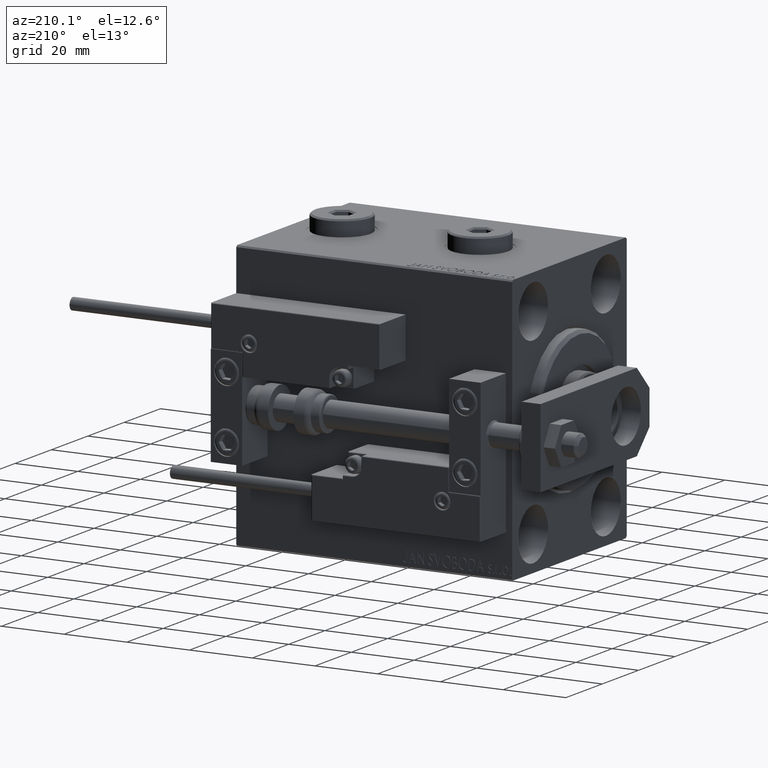
[diagram: clean part render]
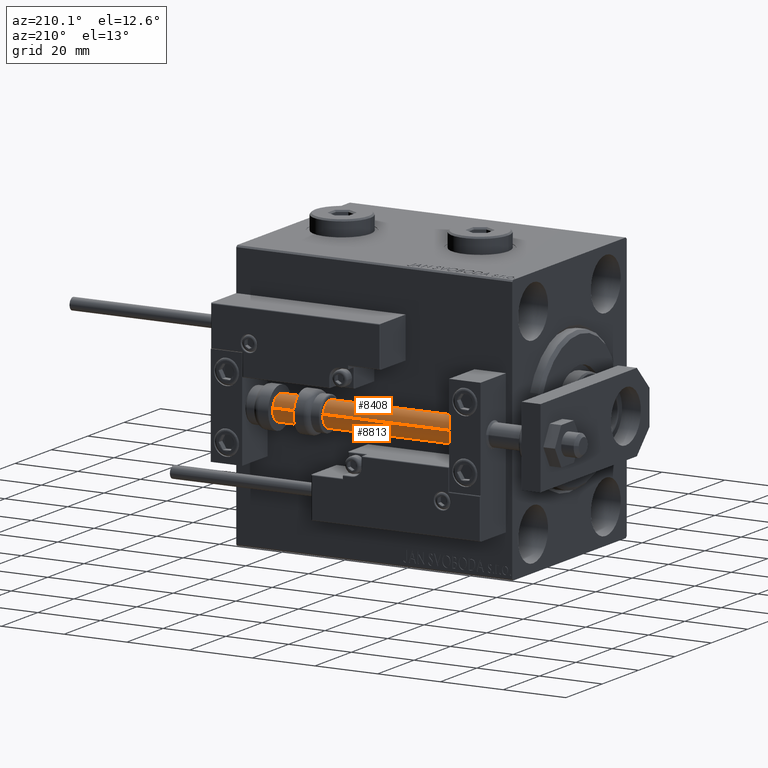
[diagram: same view with one multi-face feature highlighted, each face labeled with its STEP entity id]
A machine part, auxiliary view. The highlighted faces form ONE feature: a constant-radius fillet chain: 2 tangent blend faces with common blend radius 4 mm. The faces share edges in the B-rep.
Their STEP definitions:
[1] entity #8813 (Cylinder):
#2948 = CARTESIAN_POINT ( 'NONE',  ( 0.000000000000000000, 0.000000000000000000, 2.000000000000029310 ) ) ;
#4026 = ORIENTED_EDGE ( 'NONE', *, *, #47779, .F. ) ;
#6066 = AXIS2_PLACEMENT_3D ( 'NONE', #30469, #21349, #46408 ) ;
#7081 = VERTEX_POINT ( 'NONE', #12554 ) ;
#8453 = FACE_OUTER_BOUND ( 'NONE', #28306, .T. ) ;
#8813 = ADVANCED_FACE ( 'NONE', ( #8453 ), #15995, .T. ) ;
#9548 = ORIENTED_EDGE ( 'NONE', *, *, #27261, .T. ) ;
#9798 = DIRECTION ( 'NONE',  ( 1.000000000000000000, 0.000000000000000000, 0.000000000000000000 ) ) ;
#12218 = DIRECTION ( 'NONE',  ( -0.000000000000000000, -0.000000000000000000, -1.000000000000000000 ) ) ;
#12554 = CARTESIAN_POINT ( 'NONE',  ( 4.000000000000000000, 4.898587196589412829E-16, 88.00000000000000000 ) ) ;
#15572 = DIRECTION ( 'NONE',  ( -0.000000000000000000, -0.000000000000000000, -1.000000000000000000 ) ) ;
#15819 = LINE ( 'NONE', #31188, #25394 ) ;
#15995 = CYLINDRICAL_SURFACE ( 'NONE', #38993, 4.000000000000000000 ) ;
#18539 = CIRCLE ( 'NONE', #6066, 4.000000000000000000 ) ;
#19091 = VERTEX_POINT ( 'NONE', #47461 ) ;
#19717 = VERTEX_POINT ( 'NONE', #27928 ) ;
#21349 = DIRECTION ( 'NONE',  ( 0.000000000000000000, 0.000000000000000000, 1.000000000000000000 ) ) ;
#22359 = EDGE_CURVE ( 'NONE', #19091, #7081, #18539, .T. ) ;
#24297 = CARTESIAN_POINT ( 'NONE',  ( 0.000000000000000000, 0.000000000000000000, 88.00000000000000000 ) ) ;
#25394 = VECTOR ( 'NONE', #15572, 1000.000000000000000 ) ;
#27261 = EDGE_CURVE ( 'NONE', #19091, #27415, #28084, .T. ) ;
#27415 = VERTEX_POINT ( 'NONE', #34257 ) ;
#27928 = CARTESIAN_POINT ( 'NONE',  ( 4.000000000000000000, 4.898587196589412829E-16, 2.000000000000029310 ) ) ;
#28084 = LINE ( 'NONE', #36162, #51086 ) ;
#28306 = EDGE_LOOP ( 'NONE', ( #4026, #42796, #9548, #30281 ) ) ;
#28735 = DIRECTION ( 'NONE',  ( -0.000000000000000000, -0.000000000000000000, -1.000000000000000000 ) ) ;
#30281 = ORIENTED_EDGE ( 'NONE', *, *, #44786, .T. ) ;
#30469 = CARTESIAN_POINT ( 'NONE',  ( 0.000000000000000000, 0.000000000000000000, 88.00000000000000000 ) ) ;
#31188 = CARTESIAN_POINT ( 'NONE',  ( 4.000000000000000000, 4.898587196589412829E-16, 88.00000000000000000 ) ) ;
#34257 = CARTESIAN_POINT ( 'NONE',  ( -4.000000000000000000, 0.000000000000000000, 2.000000000000029310 ) ) ;
#35266 = CIRCLE ( 'NONE', #39454, 4.000000000000000000 ) ;
#36162 = CARTESIAN_POINT ( 'NONE',  ( -4.000000000000000000, 0.000000000000000000, 88.00000000000000000 ) ) ;
#38993 = AXIS2_PLACEMENT_3D ( 'NONE', #24297, #28735, #40489 ) ;
#39454 = AXIS2_PLACEMENT_3D ( 'NONE', #2948, #51151, #9798 ) ;
#40489 = DIRECTION ( 'NONE',  ( -1.000000000000000000, 0.000000000000000000, 0.000000000000000000 ) ) ;
#42796 = ORIENTED_EDGE ( 'NONE', *, *, #22359, .F. ) ;
#44786 = EDGE_CURVE ( 'NONE', #27415, #19717, #35266, .T. ) ;
#46408 = DIRECTION ( 'NONE',  ( 1.000000000000000000, 0.000000000000000000, 0.000000000000000000 ) ) ;
#47461 = CARTESIAN_POINT ( 'NONE',  ( -4.000000000000000000, 0.000000000000000000, 88.00000000000000000 ) ) ;
#47779 = EDGE_CURVE ( 'NONE', #7081, #19717, #15819, .T. ) ;
#51086 = VECTOR ( 'NONE', #12218, 1000.000000000000000 ) ;
#51151 = DIRECTION ( 'NONE',  ( -0.000000000000000000, -0.000000000000000000, 1.000000000000000000 ) ) ;
[2] entity #8408 (Cylinder):
#499 = DIRECTION ( 'NONE',  ( 1.000000000000000000, 0.000000000000000000, 0.000000000000000000 ) ) ;
#7081 = VERTEX_POINT ( 'NONE', #12554 ) ;
#8408 = ADVANCED_FACE ( 'NONE', ( #47618 ), #18690, .T. ) ;
#10874 = DIRECTION ( 'NONE',  ( 1.000000000000000000, 0.000000000000000000, 0.000000000000000000 ) ) ;
#11106 = ORIENTED_EDGE ( 'NONE', *, *, #27261, .F. ) ;
#12218 = DIRECTION ( 'NONE',  ( -0.000000000000000000, -0.000000000000000000, -1.000000000000000000 ) ) ;
#12554 = CARTESIAN_POINT ( 'NONE',  ( 4.000000000000000000, 4.898587196589412829E-16, 88.00000000000000000 ) ) ;
#12895 = ORIENTED_EDGE ( 'NONE', *, *, #42718, .T. ) ;
#15539 = DIRECTION ( 'NONE',  ( -0.000000000000000000, -0.000000000000000000, 1.000000000000000000 ) ) ;
#15555 = DIRECTION ( 'NONE',  ( -0.000000000000000000, -0.000000000000000000, -1.000000000000000000 ) ) ;
#15572 = DIRECTION ( 'NONE',  ( -0.000000000000000000, -0.000000000000000000, -1.000000000000000000 ) ) ;
#15819 = LINE ( 'NONE', #31188, #25394 ) ;
#18690 = CYLINDRICAL_SURFACE ( 'NONE', #31448, 4.000000000000000000 ) ;
#19091 = VERTEX_POINT ( 'NONE', #47461 ) ;
#19717 = VERTEX_POINT ( 'NONE', #27928 ) ;
#23080 = CARTESIAN_POINT ( 'NONE',  ( 0.000000000000000000, 0.000000000000000000, 2.000000000000029310 ) ) ;
#23577 = CIRCLE ( 'NONE', #46929, 4.000000000000000000 ) ;
#25394 = VECTOR ( 'NONE', #15572, 1000.000000000000000 ) ;
#27261 = EDGE_CURVE ( 'NONE', #19091, #27415, #28084, .T. ) ;
#27264 = EDGE_CURVE ( 'NONE', #7081, #19091, #23577, .T. ) ;
#27415 = VERTEX_POINT ( 'NONE', #34257 ) ;
#27516 = CARTESIAN_POINT ( 'NONE',  ( 0.000000000000000000, 0.000000000000000000, 88.00000000000000000 ) ) ;
#27928 = CARTESIAN_POINT ( 'NONE',  ( 4.000000000000000000, 4.898587196589412829E-16, 2.000000000000029310 ) ) ;
#28084 = LINE ( 'NONE', #36162, #51086 ) ;
#28534 = AXIS2_PLACEMENT_3D ( 'NONE', #23080, #15539, #10874 ) ;
#31188 = CARTESIAN_POINT ( 'NONE',  ( 4.000000000000000000, 4.898587196589412829E-16, 88.00000000000000000 ) ) ;
#31448 = AXIS2_PLACEMENT_3D ( 'NONE', #27516, #15555, #46614 ) ;
#34257 = CARTESIAN_POINT ( 'NONE',  ( -4.000000000000000000, 0.000000000000000000, 2.000000000000029310 ) ) ;
#35143 = ORIENTED_EDGE ( 'NONE', *, *, #27264, .F. ) ;
#36162 = CARTESIAN_POINT ( 'NONE',  ( -4.000000000000000000, 0.000000000000000000, 88.00000000000000000 ) ) ;
#37456 = ORIENTED_EDGE ( 'NONE', *, *, #47779, .T. ) ;
#40097 = CARTESIAN_POINT ( 'NONE',  ( 0.000000000000000000, 0.000000000000000000, 88.00000000000000000 ) ) ;
#40235 = CIRCLE ( 'NONE', #28534, 4.000000000000000000 ) ;
#42718 = EDGE_CURVE ( 'NONE', #19717, #27415, #40235, .T. ) ;
#44700 = EDGE_LOOP ( 'NONE', ( #35143, #37456, #12895, #11106 ) ) ;
#46614 = DIRECTION ( 'NONE',  ( -1.000000000000000000, 0.000000000000000000, 0.000000000000000000 ) ) ;
#46929 = AXIS2_PLACEMENT_3D ( 'NONE', #40097, #47934, #499 ) ;
#47461 = CARTESIAN_POINT ( 'NONE',  ( -4.000000000000000000, 0.000000000000000000, 88.00000000000000000 ) ) ;
#47618 = FACE_OUTER_BOUND ( 'NONE', #44700, .T. ) ;
#47779 = EDGE_CURVE ( 'NONE', #7081, #19717, #15819, .T. ) ;
#47934 = DIRECTION ( 'NONE',  ( 0.000000000000000000, 0.000000000000000000, 1.000000000000000000 ) ) ;
#51086 = VECTOR ( 'NONE', #12218, 1000.000000000000000 ) ;